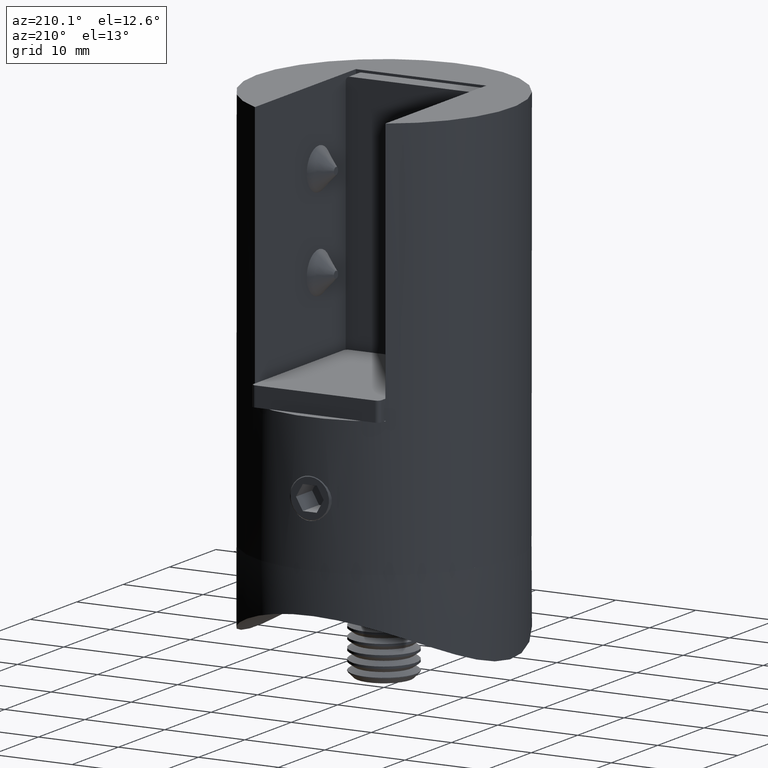
[diagram: clean part render]
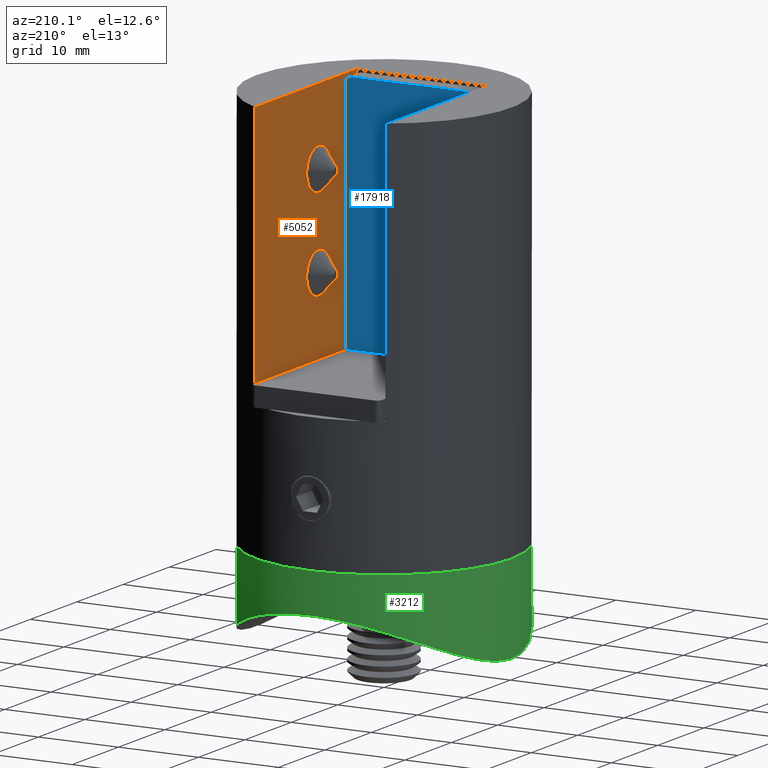
[diagram: same view with three faces highlighted in distinct colors, each labeled with its STEP entity id]
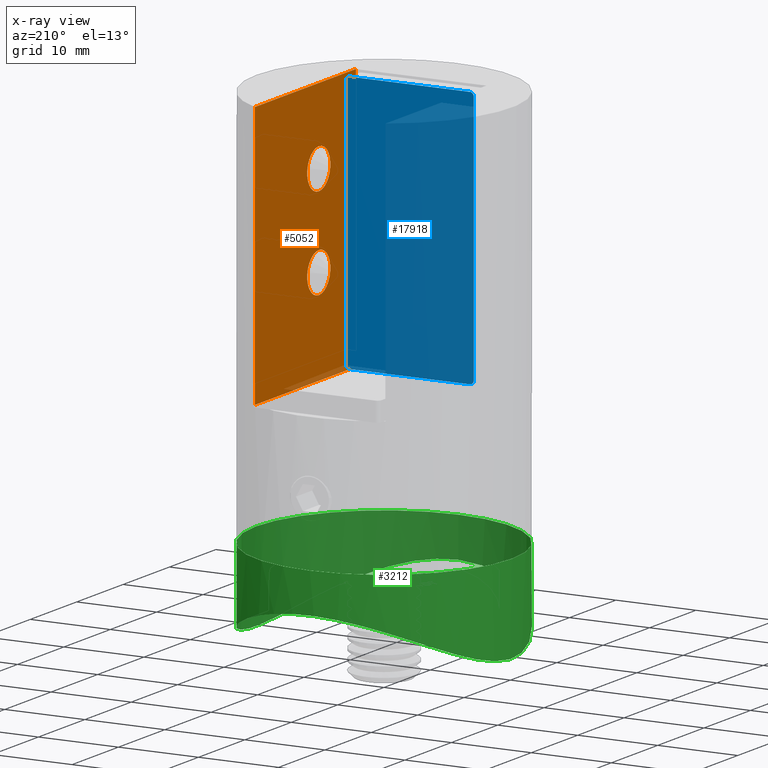
[diagram: x-ray of the same camera — body ghosted, the three highlighted faces saturated]
A machine part, auxiliary view with three faces highlighted in distinct colors.
The next image is the same camera in x-ray (body ghosted, the three faces saturated) — at least one of them is partly hidden behind the body in this view.
Their STEP definitions:

[orange] entity #5052 — the highlighted planar face has unit normal (1, 0, -0).
#827 = VERTEX_POINT ( 'NONE', #19871 ) ;
#1315 = VERTEX_POINT ( 'NONE', #14905 ) ;
#1495 = PLANE ( 'NONE',  #8730 ) ;
#1541 = DIRECTION ( 'NONE',  ( -0.000000000000000000, 1.000000000000000000, -0.000000000000000000 ) ) ;
#2901 = EDGE_LOOP ( 'NONE', ( #15234, #3055, #20186, #18677 ) ) ;
#3001 = VECTOR ( 'NONE', #1541, 1000.000000000000000 ) ;
#3055 = ORIENTED_EDGE ( 'NONE', *, *, #3916, .F. ) ;
#3275 = LINE ( 'NONE', #9643, #19771 ) ;
#3764 = EDGE_CURVE ( 'NONE', #7651, #19313, #12616, .T. ) ;
#3916 = EDGE_CURVE ( 'NONE', #12935, #19313, #13117, .T. ) ;
#4393 = DIRECTION ( 'NONE',  ( -3.304235192336775512E-16, 0.000000000000000000, -1.000000000000000000 ) ) ;
#4665 = DIRECTION ( 'NONE',  ( 1.000000000000000000, 0.000000000000000000, -3.304235192336775512E-16 ) ) ;
#5052 = ADVANCED_FACE ( 'NONE', ( #18185, #7837, #7603 ), #1495, .F. ) ;
#5321 = EDGE_LOOP ( 'NONE', ( #19770 ) ) ;
#5907 = CARTESIAN_POINT ( 'NONE',  ( 8.150000000000002132, -7.703719777548943412E-31, -21.00000000000001421 ) ) ;
#6903 = EDGE_CURVE ( 'NONE', #1315, #1315, #13743, .T. ) ;
#7403 = CARTESIAN_POINT ( 'NONE',  ( 8.150000000000000355, 13.76871453694934111, -33.00000000000000000 ) ) ;
#7492 = DIRECTION ( 'NONE',  ( -1.000000000000000000, -0.000000000000000000, 3.304235192336775512E-16 ) ) ;
#7603 = FACE_OUTER_BOUND ( 'NONE', #2901, .T. ) ;
#7651 = VERTEX_POINT ( 'NONE', #19502 ) ;
#7837 = FACE_BOUND ( 'NONE', #5321, .T. ) ;
#8730 = AXIS2_PLACEMENT_3D ( 'NONE', #14111, #4665, #4393 ) ;
#8752 = EDGE_LOOP ( 'NONE', ( #15947 ) ) ;
#9512 = DIRECTION ( 'NONE',  ( -3.304235192336775512E-16, -0.000000000000000000, -1.000000000000000000 ) ) ;
#9643 = CARTESIAN_POINT ( 'NONE',  ( 8.150000000000000355, -8.000000000000000000, -33.00000000000000000 ) ) ;
#10342 = CIRCLE ( 'NONE', #18752, 2.499999999999988454 ) ;
#10685 = EDGE_CURVE ( 'NONE', #14396, #7651, #18093, .T. ) ;
#11473 = DIRECTION ( 'NONE',  ( -1.000000000000000000, -0.000000000000000000, 3.304235192336775512E-16 ) ) ;
#11922 = CARTESIAN_POINT ( 'NONE',  ( 8.150000000000000355, -8.000000000000000000, -33.00000000000000000 ) ) ;
#12463 = CARTESIAN_POINT ( 'NONE',  ( 8.150000000000011013, -8.000000000000000000, -1.387778780781445676E-14 ) ) ;
#12616 = LINE ( 'NONE', #20099, #13369 ) ;
#12920 = VECTOR ( 'NONE', #17824, 1000.000000000000000 ) ;
#12935 = VERTEX_POINT ( 'NONE', #11922 ) ;
#13117 = LINE ( 'NONE', #17097, #3001 ) ;
#13369 = VECTOR ( 'NONE', #17030, 1000.000000000000000 ) ;
#13743 = CIRCLE ( 'NONE', #14309, 2.499999999999988454 ) ;
#14111 = CARTESIAN_POINT ( 'NONE',  ( 8.150000000000000355, -8.000000000000000000, -33.00000000000000000 ) ) ;
#14309 = AXIS2_PLACEMENT_3D ( 'NONE', #17531, #11473, #14462 ) ;
#14396 = VERTEX_POINT ( 'NONE', #12463 ) ;
#14462 = DIRECTION ( 'NONE',  ( 0.000000000000000000, 0.000000000000000000, 1.000000000000000000 ) ) ;
#14752 = CARTESIAN_POINT ( 'NONE',  ( 8.150000000000011013, 0.000000000000000000, 0.000000000000000000 ) ) ;
#14905 = CARTESIAN_POINT ( 'NONE',  ( 8.150000000000005684, 0.000000000000000000, -7.000000000000024869 ) ) ;
#14980 = EDGE_CURVE ( 'NONE', #827, #827, #10342, .T. ) ;
#15234 = ORIENTED_EDGE ( 'NONE', *, *, #3764, .T. ) ;
#15947 = ORIENTED_EDGE ( 'NONE', *, *, #6903, .F. ) ;
#17030 = DIRECTION ( 'NONE',  ( -0.000000000000000000, -0.000000000000000000, -1.000000000000000000 ) ) ;
#17097 = CARTESIAN_POINT ( 'NONE',  ( 8.150000000000000355, -8.000000000000000000, -33.00000000000000000 ) ) ;
#17531 = CARTESIAN_POINT ( 'NONE',  ( 8.150000000000005684, 0.000000000000000000, -9.500000000000014211 ) ) ;
#17824 = DIRECTION ( 'NONE',  ( -0.000000000000000000, 1.000000000000000000, 0.000000000000000000 ) ) ;
#18093 = LINE ( 'NONE', #14752, #12920 ) ;
#18185 = FACE_BOUND ( 'NONE', #8752, .T. ) ;
#18677 = ORIENTED_EDGE ( 'NONE', *, *, #10685, .T. ) ;
#18752 = AXIS2_PLACEMENT_3D ( 'NONE', #5907, #7492, #20054 ) ;
#19313 = VERTEX_POINT ( 'NONE', #7403 ) ;
#19502 = CARTESIAN_POINT ( 'NONE',  ( 8.150000000000011013, 13.76871453694933045, 0.000000000000000000 ) ) ;
#19770 = ORIENTED_EDGE ( 'NONE', *, *, #14980, .F. ) ;
#19771 = VECTOR ( 'NONE', #9512, 1000.000000000000000 ) ;
#19871 = CARTESIAN_POINT ( 'NONE',  ( 8.150000000000002132, -7.703719777548943412E-31, -18.50000000000002842 ) ) ;
#19927 = EDGE_CURVE ( 'NONE', #14396, #12935, #3275, .T. ) ;
#20054 = DIRECTION ( 'NONE',  ( 0.000000000000000000, 0.000000000000000000, 1.000000000000000000 ) ) ;
#20099 = CARTESIAN_POINT ( 'NONE',  ( 8.149999999999995026, 13.76871453694933933, -50.00000000000000000 ) ) ;
#20186 = ORIENTED_EDGE ( 'NONE', *, *, #19927, .F. ) ;

[blue] entity #17918 — the highlighted planar face has unit normal (0, -1, -0).
#59 = DIRECTION ( 'NONE',  ( 1.000000000000000000, 0.000000000000000000, 0.000000000000000000 ) ) ;
#273 = DIRECTION ( 'NONE',  ( 0.000000000000000000, 0.000000000000000000, 1.000000000000000000 ) ) ;
#308 = ORIENTED_EDGE ( 'NONE', *, *, #18790, .T. ) ;
#888 = EDGE_CURVE ( 'NONE', #18146, #14594, #11934, .T. ) ;
#1331 = CARTESIAN_POINT ( 'NONE',  ( -15.69999999999999929, 2.450000000000000178, 7.500000000000000000 ) ) ;
#1605 = FACE_OUTER_BOUND ( 'NONE', #15563, .T. ) ;
#1640 = DIRECTION ( 'NONE',  ( 0.000000000000000000, 0.000000000000000000, -1.000000000000000000 ) ) ;
#1656 = CARTESIAN_POINT ( 'NONE',  ( -16.19999999999999929, 2.450000000000000178, 7.499999999999996447 ) ) ;
#1680 = VECTOR ( 'NONE', #17574, 1000.000000000000000 ) ;
#1814 = ORIENTED_EDGE ( 'NONE', *, *, #12353, .F. ) ;
#2299 = EDGE_CURVE ( 'NONE', #2986, #12540, #4771, .T. ) ;
#2668 = LINE ( 'NONE', #3409, #1680 ) ;
#2958 = EDGE_CURVE ( 'NONE', #8978, #7836, #6973, .T. ) ;
#2986 = VERTEX_POINT ( 'NONE', #16814 ) ;
#3409 = CARTESIAN_POINT ( 'NONE',  ( -15.69999999999999574, 2.450000000000000178, 8.000000000000000000 ) ) ;
#4012 = AXIS2_PLACEMENT_3D ( 'NONE', #1331, #4497, #17018 ) ;
#4404 = ORIENTED_EDGE ( 'NONE', *, *, #2958, .T. ) ;
#4497 = DIRECTION ( 'NONE',  ( 0.000000000000000000, 1.000000000000000000, 0.000000000000000000 ) ) ;
#4771 = CIRCLE ( 'NONE', #19125, 0.5000000000000004441 ) ;
#4968 = AXIS2_PLACEMENT_3D ( 'NONE', #17168, #10687, #6031 ) ;
#5008 = DIRECTION ( 'NONE',  ( -0.000000000000000000, -1.000000000000000000, 0.000000000000000000 ) ) ;
#5020 = CARTESIAN_POINT ( 'NONE',  ( 15.69999999999999929, 2.450000000000000178, -7.500000000000000000 ) ) ;
#5033 = CARTESIAN_POINT ( 'NONE',  ( 16.19999999999999929, 2.450000000000000178, -7.499999999999996447 ) ) ;
#5070 = VERTEX_POINT ( 'NONE', #16912 ) ;
#5920 = EDGE_CURVE ( 'NONE', #12540, #5070, #10029, .T. ) ;
#5976 = EDGE_CURVE ( 'NONE', #7836, #18146, #2668, .T. ) ;
#6031 = DIRECTION ( 'NONE',  ( 0.000000000000000000, -0.000000000000000000, -1.000000000000000000 ) ) ;
#6033 = CIRCLE ( 'NONE', #6223, 0.5000000000000004441 ) ;
#6223 = AXIS2_PLACEMENT_3D ( 'NONE', #5020, #9596, #273 ) ;
#6537 = DIRECTION ( 'NONE',  ( 0.000000000000000000, 0.000000000000000000, -1.000000000000000000 ) ) ;
#6973 = CIRCLE ( 'NONE', #4012, 0.5000000000000004441 ) ;
#7018 = VECTOR ( 'NONE', #9399, 1000.000000000000000 ) ;
#7101 = VECTOR ( 'NONE', #59, 1000.000000000000000 ) ;
#7276 = CARTESIAN_POINT ( 'NONE',  ( -15.69999999999999574, 2.450000000000000178, -8.000000000000000000 ) ) ;
#7836 = VERTEX_POINT ( 'NONE', #10736 ) ;
#8503 = DIRECTION ( 'NONE',  ( 0.000000000000000000, 1.000000000000000000, 0.000000000000000000 ) ) ;
#8671 = VECTOR ( 'NONE', #6537, 1000.000000000000000 ) ;
#8978 = VERTEX_POINT ( 'NONE', #9833 ) ;
#9399 = DIRECTION ( 'NONE',  ( 0.000000000000000000, 0.000000000000000000, -1.000000000000000000 ) ) ;
#9596 = DIRECTION ( 'NONE',  ( 0.000000000000000000, 1.000000000000000000, 0.000000000000000000 ) ) ;
#9833 = CARTESIAN_POINT ( 'NONE',  ( -16.19999999999999929, 2.450000000000000178, 7.499999999999996447 ) ) ;
#10029 = LINE ( 'NONE', #18403, #7101 ) ;
#10188 = ORIENTED_EDGE ( 'NONE', *, *, #5976, .T. ) ;
#10687 = DIRECTION ( 'NONE',  ( 0.000000000000000000, -1.000000000000000000, 0.000000000000000000 ) ) ;
#10736 = CARTESIAN_POINT ( 'NONE',  ( -15.69999999999999574, 2.450000000000000178, 8.000000000000000000 ) ) ;
#10880 = LINE ( 'NONE', #1656, #8671 ) ;
#11180 = CARTESIAN_POINT ( 'NONE',  ( -15.69999999999999929, 2.450000000000000178, -7.500000000000000000 ) ) ;
#11434 = CARTESIAN_POINT ( 'NONE',  ( 15.69999999999999574, 2.450000000000000178, 8.000000000000000000 ) ) ;
#11477 = AXIS2_PLACEMENT_3D ( 'NONE', #19702, #8503, #11685 ) ;
#11685 = DIRECTION ( 'NONE',  ( 0.000000000000000000, 0.000000000000000000, 1.000000000000000000 ) ) ;
#11934 = CIRCLE ( 'NONE', #11477, 0.5000000000000004441 ) ;
#12353 = EDGE_CURVE ( 'NONE', #8978, #2986, #10880, .T. ) ;
#12526 = CARTESIAN_POINT ( 'NONE',  ( 16.19999999999999929, 2.450000000000000178, 7.499999999999996447 ) ) ;
#12527 = ORIENTED_EDGE ( 'NONE', *, *, #888, .T. ) ;
#12540 = VERTEX_POINT ( 'NONE', #7276 ) ;
#14407 = CARTESIAN_POINT ( 'NONE',  ( 16.19999999999999929, 2.450000000000000178, 7.499999999999996447 ) ) ;
#14594 = VERTEX_POINT ( 'NONE', #14407 ) ;
#14599 = VERTEX_POINT ( 'NONE', #5033 ) ;
#15563 = EDGE_LOOP ( 'NONE', ( #16376, #1814, #4404, #10188, #12527, #19436, #308, #18912 ) ) ;
#15641 = LINE ( 'NONE', #12526, #7018 ) ;
#16376 = ORIENTED_EDGE ( 'NONE', *, *, #2299, .F. ) ;
#16814 = CARTESIAN_POINT ( 'NONE',  ( -16.19999999999999929, 2.450000000000000178, -7.499999999999996447 ) ) ;
#16912 = CARTESIAN_POINT ( 'NONE',  ( 15.69999999999999574, 2.450000000000000178, -8.000000000000000000 ) ) ;
#17018 = DIRECTION ( 'NONE',  ( 0.000000000000000000, 0.000000000000000000, 1.000000000000000000 ) ) ;
#17036 = PLANE ( 'NONE',  #4968 ) ;
#17168 = CARTESIAN_POINT ( 'NONE',  ( -15.69999999999999929, 2.450000000000000178, -7.500000000000000000 ) ) ;
#17574 = DIRECTION ( 'NONE',  ( 1.000000000000000000, 0.000000000000000000, 0.000000000000000000 ) ) ;
#17918 = ADVANCED_FACE ( 'NONE', ( #1605 ), #17036, .F. ) ;
#18146 = VERTEX_POINT ( 'NONE', #11434 ) ;
#18403 = CARTESIAN_POINT ( 'NONE',  ( -15.69999999999999574, 2.450000000000000178, -8.000000000000000000 ) ) ;
#18617 = EDGE_CURVE ( 'NONE', #14594, #14599, #15641, .T. ) ;
#18790 = EDGE_CURVE ( 'NONE', #14599, #5070, #6033, .T. ) ;
#18912 = ORIENTED_EDGE ( 'NONE', *, *, #5920, .F. ) ;
#19125 = AXIS2_PLACEMENT_3D ( 'NONE', #11180, #5008, #1640 ) ;
#19436 = ORIENTED_EDGE ( 'NONE', *, *, #18617, .T. ) ;
#19702 = CARTESIAN_POINT ( 'NONE',  ( 15.69999999999999929, 2.450000000000000178, 7.500000000000000000 ) ) ;

[green] entity #3212 — the highlighted cylindrical surface (bore or boss wall) has radius 16 mm, axis along (0, -0, -1).
#168 = CARTESIAN_POINT ( 'NONE',  ( 4.878909776184769953E-16, 3.465933333802039860E-15, -16.00000000000000711 ) ) ;
#375 = CARTESIAN_POINT ( 'NONE',  ( -8.551384528557964160, -1.560042046064436416, 13.53284123907771175 ) ) ;
#444 = EDGE_LOOP ( 'NONE', ( #12093 ) ) ;
#447 = CARTESIAN_POINT ( 'NONE',  ( -1.042858073736825597, -0.01647405515341673898, 15.97517427357765563 ) ) ;
#516 = CARTESIAN_POINT ( 'NONE',  ( -15.42321579544490184, -5.566283524729522370, 4.265649853437405881 ) ) ;
#585 = CARTESIAN_POINT ( 'NONE',  ( 5.320418285404791447, -0.5719942947260659993, 15.12623773592640930 ) ) ;
#662 = CARTESIAN_POINT ( 'NONE',  ( 14.31986462821768313, -4.696873124689878054, -7.211724514559750610 ) ) ;
#921 = CARTESIAN_POINT ( 'NONE',  ( -9.411353361399397599, -1.904576057870598804, -12.94954299253910968 ) ) ;
#984 = CARTESIAN_POINT ( 'NONE',  ( -0.5467149535870703403, 3.476223215531642281E-15, -16.00000000000000711 ) ) ;
#1007 = DIRECTION ( 'NONE',  ( -0.000000000000000000, -1.000000000000000000, -0.000000000000000000 ) ) ;
#1472 = ORIENTED_EDGE ( 'NONE', *, *, #3578, .T. ) ;
#1742 = CARTESIAN_POINT ( 'NONE',  ( 5.275747725206339389, -0.5775232300563346577, -15.11469623726103606 ) ) ;
#1800 = VERTEX_POINT ( 'NONE', #15099 ) ;
#1953 = CARTESIAN_POINT ( 'NONE',  ( 4.310827683376341923, -0.3640347307496384910, 15.44594141629692352 ) ) ;
#2022 = CARTESIAN_POINT ( 'NONE',  ( -12.05392479121809046, -3.207642341430238186, 10.57031934000033147 ) ) ;
#2095 = CARTESIAN_POINT ( 'NONE',  ( -2.662944644146644446, -0.1413683881137999532, 15.78602135888619529 ) ) ;
#2168 = CARTESIAN_POINT ( 'NONE',  ( 15.89507951209992420, -5.966280007977300848, 2.121861214580270438 ) ) ;
#2227 = CARTESIAN_POINT ( 'NONE',  ( 0.000000000000000000, 5.000000000000000000, -16.00000000000000000 ) ) ;
#2234 = CARTESIAN_POINT ( 'NONE',  ( 15.99889945513611700, -6.059734157207304683, -0.5739181088469769154 ) ) ;
#2275 = AXIS2_PLACEMENT_3D ( 'NONE', #11817, #1007, #8763 ) ;
#2296 = CARTESIAN_POINT ( 'NONE',  ( -7.232166046226576661, -1.086845825324251003, -14.31039729867868182 ) ) ;
#2364 = CARTESIAN_POINT ( 'NONE',  ( -3.485726828505891106, -0.2514084154458020026, -15.61799768039313996 ) ) ;
#2425 = CARTESIAN_POINT ( 'NONE',  ( -14.33314076264084136, -4.706689628118392754, -7.185494220534367926 ) ) ;
#2489 = CARTESIAN_POINT ( 'NONE',  ( -4.268279367806601776, -0.3787143447972567412, -15.42252057435309176 ) ) ;
#3188 = CARTESIAN_POINT ( 'NONE',  ( 5.772343269960320988, -0.6946781532575976303, -14.93167379752965473 ) ) ;
#3212 = ADVANCED_FACE ( 'NONE', ( #19745, #20235 ), #13386, .T. ) ;
#3464 = CARTESIAN_POINT ( 'NONE',  ( 2.162802222802237218, -0.07385003039676880932, -15.88913970827019284 ) ) ;
#3496 = CIRCLE ( 'NONE', #2275, 16.00000000000000000 ) ;
#3537 = CARTESIAN_POINT ( 'NONE',  ( -8.110807478866485454, -1.397652382978113561, 13.80164670675395300 ) ) ;
#3578 = EDGE_CURVE ( 'NONE', #17319, #17319, #3496, .T. ) ;
#3615 = CARTESIAN_POINT ( 'NONE',  ( 15.42559031887747523, -5.567332529912010664, -4.281581221595087250 ) ) ;
#3686 = CARTESIAN_POINT ( 'NONE',  ( 15.77490872757177520, -5.863532677428071160, -2.726765751964202789 ) ) ;
#3759 = CARTESIAN_POINT ( 'NONE',  ( 13.57136654030459866, -4.171130408817958823, 8.489749767725491836 ) ) ;
#3833 = CARTESIAN_POINT ( 'NONE',  ( 12.70400355167247319, -3.608075241889363127, 9.739886530507446238 ) ) ;
#3896 = CARTESIAN_POINT ( 'NONE',  ( -5.790292232700016584, -0.6991425015800778464, -14.92465879011944452 ) ) ;
#3970 = CARTESIAN_POINT ( 'NONE',  ( -14.93763095668425933, -5.172266547697089045, -5.756278679030428336 ) ) ;
#4786 = CARTESIAN_POINT ( 'NONE',  ( 9.842730464393167011, -2.077531809922397610, -12.65667063551272697 ) ) ;
#5066 = EDGE_LOOP ( 'NONE', ( #1472 ) ) ;
#5123 = CARTESIAN_POINT ( 'NONE',  ( 15.44214941605699387, -5.581131056128653789, 4.221083223141256724 ) ) ;
#5195 = CARTESIAN_POINT ( 'NONE',  ( -13.81742950120149516, -4.341107592674501525, 8.083516411768695065 ) ) ;
#5264 = CARTESIAN_POINT ( 'NONE',  ( -15.88834132209191274, -5.960334649251885608, 2.171086772573057821 ) ) ;
#5330 = CARTESIAN_POINT ( 'NONE',  ( -5.258828131823481300, -0.5579214799764438126, 15.14813486559561007 ) ) ;
#5398 = CARTESIAN_POINT ( 'NONE',  ( 6.773507639207513975, -0.9639315492255671192, 14.50507062910953238 ) ) ;
#6429 = CARTESIAN_POINT ( 'NONE',  ( 4.251902136647176533, -0.3715117522175356291, -15.43401712533286130 ) ) ;
#6494 = CARTESIAN_POINT ( 'NONE',  ( 11.69353741336916208, -3.015975473543497376, -10.93237706803038733 ) ) ;
#6689 = CARTESIAN_POINT ( 'NONE',  ( -6.721650818704468122, -0.9487792169212915239, 14.52927135399406566 ) ) ;
#6759 = CARTESIAN_POINT ( 'NONE',  ( -14.53161606438342801, -4.859603105429813219, 6.715620687923966159 ) ) ;
#6827 = CARTESIAN_POINT ( 'NONE',  ( -16.00015859834054766, -6.060847867454414839, -0.2633096187692477441 ) ) ;
#6901 = CARTESIAN_POINT ( 'NONE',  ( 15.13104560772049645, -5.326760872273300862, 5.227712786830983838 ) ) ;
#6970 = CARTESIAN_POINT ( 'NONE',  ( 8.600228732240525531, -1.578661036202237966, 13.50173790755023617 ) ) ;
#7043 = CARTESIAN_POINT ( 'NONE',  ( -15.56725914140275968, -5.686447009818094145, -3.734377750765781823 ) ) ;
#7110 = CARTESIAN_POINT ( 'NONE',  ( -3.747472486822372773, -0.2910670728257301332, -15.55727481239877008 ) ) ;
#7993 = CARTESIAN_POINT ( 'NONE',  ( 1.093429907174150006, 3.445353570342834229E-15, -16.00000000000000711 ) ) ;
#8058 = CARTESIAN_POINT ( 'NONE',  ( 12.68024191844236270, -3.593356043621906082, -9.770904417435113842 ) ) ;
#8193 = CARTESIAN_POINT ( 'NONE',  ( 0.03513741029744595068, 0.01797691695324645997, 16.02709411151440477 ) ) ;
#8266 = CARTESIAN_POINT ( 'NONE',  ( -9.401984288177461124, -1.900616431894089908, 12.95633670457074338 ) ) ;
#8335 = CARTESIAN_POINT ( 'NONE',  ( -15.11478067928221591, -5.313678253764541282, 5.274540260561693117 ) ) ;
#8402 = CARTESIAN_POINT ( 'NONE',  ( 13.00573230629547439, -3.798387113308692609, 9.333207812262424241 ) ) ;
#8478 = CARTESIAN_POINT ( 'NONE',  ( 9.865639215707155074, -2.088296295899021882, 12.63774528741735281 ) ) ;
#8740 = CARTESIAN_POINT ( 'NONE',  ( -12.05805447839437150, -3.210101427612138458, -10.56539283169655796 ) ) ;
#8763 = DIRECTION ( 'NONE',  ( 0.000000000000000000, 0.000000000000000000, -1.000000000000000000 ) ) ;
#8801 = CARTESIAN_POINT ( 'NONE',  ( -15.96566512601532395, -6.030386982001304297, -1.082498266701986678 ) ) ;
#9621 = CARTESIAN_POINT ( 'NONE',  ( 13.83397895794804278, -4.343367616628929007, -8.102301808186028964 ) ) ;
#9760 = CARTESIAN_POINT ( 'NONE',  ( -4.245353141207407255, -0.3522660549656061457, 15.46402130076265458 ) ) ;
#9832 = CARTESIAN_POINT ( 'NONE',  ( 12.06181014241624005, -3.224534291990288626, 10.52472479242910453 ) ) ;
#9900 = CARTESIAN_POINT ( 'NONE',  ( 15.96965923795028885, -6.033763058675402746, -1.123321241678105542 ) ) ;
#9977 = CARTESIAN_POINT ( 'NONE',  ( 15.57501006091767515, -5.692989327537908650, 3.702434811011921845 ) ) ;
#10042 = CARTESIAN_POINT ( 'NONE',  ( 13.83527688763129326, -4.353578128611939491, 8.052981158596610456 ) ) ;
#10315 = CARTESIAN_POINT ( 'NONE',  ( -9.825312265958483948, -2.084764760639122194, -12.63824017794604337 ) ) ;
#10386 = CARTESIAN_POINT ( 'NONE',  ( -15.43338607518128391, -5.573817127507202152, -4.253440794167246075 ) ) ;
#11356 = CARTESIAN_POINT ( 'NONE',  ( 14.32465776655085676, -4.704759313945467092, 7.146297780622557383 ) ) ;
#11431 = CARTESIAN_POINT ( 'NONE',  ( -10.60246786348570325, -2.447457319275142318, 11.99379377658119594 ) ) ;
#11505 = CARTESIAN_POINT ( 'NONE',  ( 10.64387692798092822, -2.456888350107875318, 11.98939423343472832 ) ) ;
#11582 = CARTESIAN_POINT ( 'NONE',  ( 1.111836551517509042, -0.01958014879024436855, 15.97048600726808054 ) ) ;
#11654 = CARTESIAN_POINT ( 'NONE',  ( 15.55894929646023961, -5.679436140364019003, -3.768566520506819728 ) ) ;
#11713 = DIRECTION ( 'NONE',  ( 0.000000000000000000, 0.000000000000000000, -1.000000000000000000 ) ) ;
#11780 = DIRECTION ( 'NONE',  ( -0.000000000000000000, -1.000000000000000000, -0.000000000000000000 ) ) ;
#11791 = CARTESIAN_POINT ( 'NONE',  ( -13.84608556975143934, -4.351583562790193760, -8.083047669827825743 ) ) ;
#11817 = CARTESIAN_POINT ( 'NONE',  ( 0.000000000000000000, 5.000000000000000000, 0.000000000000000000 ) ) ;
#11858 = CARTESIAN_POINT ( 'NONE',  ( -15.11790863573347821, -5.316178976651885435, -5.265928485718427865 ) ) ;
#11987 = CARTESIAN_POINT ( 'NONE',  ( 4.878909776184769953E-16, 3.465933333802039860E-15, -16.00000000000000711 ) ) ;
#12093 = ORIENTED_EDGE ( 'NONE', *, *, #12904, .F. ) ;
#12904 = EDGE_CURVE ( 'NONE', #1800, #1800, #19366, .T. ) ;
#12960 = CARTESIAN_POINT ( 'NONE',  ( -7.197102279576335526, -1.092327983459493224, 14.29938350260618485 ) ) ;
#13022 = CARTESIAN_POINT ( 'NONE',  ( -12.69487955101366694, -3.594529789712058943, 9.791735161200366022 ) ) ;
#13098 = CARTESIAN_POINT ( 'NONE',  ( -15.55701186269881831, -5.678143422764770243, 3.748431145004460951 ) ) ;
#13175 = CARTESIAN_POINT ( 'NONE',  ( 15.10850992129838311, -5.308628103353483674, -5.292797218956190264 ) ) ;
#13247 = CARTESIAN_POINT ( 'NONE',  ( 16.00210777862565337, -6.062571913201299623, 1.053190261119271165 ) ) ;
#13384 = CARTESIAN_POINT ( 'NONE',  ( -15.86294566125995331, -5.940256868134336621, -2.158315827595793657 ) ) ;
#13386 = CYLINDRICAL_SURFACE ( 'NONE', #17040, 16.00000000000000000 ) ;
#13519 = CARTESIAN_POINT ( 'NONE',  ( -2.164908011609237182, -0.09120946649448465060, -15.86204911743261192 ) ) ;
#14225 = CARTESIAN_POINT ( 'NONE',  ( 7.219911771601451811, -1.082844712613556526, -14.31684989439542477 ) ) ;
#14352 = CARTESIAN_POINT ( 'NONE',  ( 8.130541118761520636, -1.391100727126341585, -13.81900704416462489 ) ) ;
#14491 = CARTESIAN_POINT ( 'NONE',  ( 3.733504146602000251, -0.2844914261029866664, -15.56748423215123900 ) ) ;
#14560 = CARTESIAN_POINT ( 'NONE',  ( 14.92631007649248787, -5.163351808448463309, -5.785511287820154891 ) ) ;
#14630 = CARTESIAN_POINT ( 'NONE',  ( -13.54947436980915754, -4.156239725927494355, 8.524743713000582090 ) ) ;
#14702 = CARTESIAN_POINT ( 'NONE',  ( -15.61797815048892524, -5.729731015479998746, 3.485802845067987210 ) ) ;
#14773 = CARTESIAN_POINT ( 'NONE',  ( 2.187881182888611331, -0.09326494938473635365, 15.85893296924522211 ) ) ;
#14836 = CARTESIAN_POINT ( 'NONE',  ( 14.95227849257499919, -5.183806075202462615, 5.718345991040335363 ) ) ;
#14906 = CARTESIAN_POINT ( 'NONE',  ( -2.696456683992734860, -0.1451357774197707673, -15.78029447197594415 ) ) ;
#15099 = CARTESIAN_POINT ( 'NONE',  ( 0.000000000000000000, 3.469446951953614189E-15, -16.00000000000000000 ) ) ;
#15102 = CARTESIAN_POINT ( 'NONE',  ( -10.61283868468660785, -2.452557239509840503, -11.98455384951243552 ) ) ;
#15165 = CARTESIAN_POINT ( 'NONE',  ( -8.135421732675848006, -1.393083533478103542, -13.81563811289492705 ) ) ;
#16142 = CARTESIAN_POINT ( 'NONE',  ( 8.161962422206624268, -1.415961414347748804, 13.77146542663681217 ) ) ;
#16211 = CARTESIAN_POINT ( 'NONE',  ( -14.30811814937147197, -4.692576443698980526, 7.179300148596226450 ) ) ;
#16277 = CARTESIAN_POINT ( 'NONE',  ( -15.99935160277725288, -6.060134079170732768, 1.100573636296142022 ) ) ;
#16346 = CARTESIAN_POINT ( 'NONE',  ( -10.98046573634212564, -2.636838702646092436, 11.64845743729608074 ) ) ;
#16417 = CARTESIAN_POINT ( 'NONE',  ( 2.728854609169550915, -0.1487693586672239332, 15.77477219835120970 ) ) ;
#16477 = CARTESIAN_POINT ( 'NONE',  ( -15.78160284456452800, -5.869317358116089345, -2.688149180651069337 ) ) ;
#16542 = CARTESIAN_POINT ( 'NONE',  ( -5.295071900945006682, -0.5818699998367168336, -15.10791962739741479 ) ) ;
#16739 = CARTESIAN_POINT ( 'NONE',  ( -12.70201650511801361, -3.598840525902970100, -9.783073236018308805 ) ) ;
#17040 = AXIS2_PLACEMENT_3D ( 'NONE', #19526, #11780, #11713 ) ;
#17319 = VERTEX_POINT ( 'NONE', #2227 ) ;
#17361 = CARTESIAN_POINT ( 'NONE',  ( 10.62306975625455330, -2.446863621940090994, -12.00721163866094088 ) ) ;
#17490 = CARTESIAN_POINT ( 'NONE',  ( 12.03352161052860225, -3.208211549429214049, -10.55715235723237377 ) ) ;
#17695 = CARTESIAN_POINT ( 'NONE',  ( 15.85751406783431783, -5.935519368400823836, -2.197979612437904962 ) ) ;
#17766 = CARTESIAN_POINT ( 'NONE',  ( -14.93494299043501883, -5.170148692227709120, 5.763237331498226368 ) ) ;
#17845 = CARTESIAN_POINT ( 'NONE',  ( -15.99326873482955236, -6.054746644116492327, -0.5381640911452839626 ) ) ;
#17913 = CARTESIAN_POINT ( 'NONE',  ( 7.249697420507559720, -1.108818860428955722, 14.27279853040922930 ) ) ;
#18044 = CARTESIAN_POINT ( 'NONE',  ( -1.090827547207879444, -0.01864438337379884306, -15.97189795124006473 ) ) ;
#19066 = CARTESIAN_POINT ( 'NONE',  ( 12.98469313883087395, -3.784955582294040610, -9.362388113636884057 ) ) ;
#19199 = CARTESIAN_POINT ( 'NONE',  ( -2.121512090381802995, -0.08729412674241480985, 15.86798451232856699 ) ) ;
#19269 = CARTESIAN_POINT ( 'NONE',  ( -9.812002301453734532, -2.078813026001570918, 12.64863726998572169 ) ) ;
#19339 = CARTESIAN_POINT ( 'NONE',  ( -15.35038739144273912, -5.506009415625038095, 4.520503226235753402 ) ) ;
#19366 = B_SPLINE_CURVE_WITH_KNOTS ( 'NONE', 3,
 ( #168, #7993, #3464, #14491, #6429, #1742, #3188, #14225, #14352, #4786, #17361, #6494, #17490, #8058, #19066, #9621, #662, #14560, #13175, #3615, #11654, #3686, #17695, #9900, #2234, #13247, #2168, #9977, #5123, #6901, #14836, #19407, #11356, #10042, #3759, #8402, #3833, #9832, #19469, #11505, #8478, #6970, #16142, #17913, #5398, #585, #1953, #16417, #14773, #11582, #8193, #447, #19199, #2095, #9760, #5330, #6689, #12960, #3537, #375, #8266, #19269, #11431, #16346, #2022, #13022, #14630, #5195, #16211, #6759, #17766, #8335, #19339, #516, #13098, #14702, #5264, #16277, #6827, #17845, #8801, #19540, #13384, #16477, #7043, #10386, #11858, #3970, #2425, #11791, #16739, #8740, #19812, #15102, #10315, #921, #15165, #2296, #3896, #16542, #19681, #2489, #7110, #2364, #14906, #13519, #18044, #984, #11987 ),
 .UNSPECIFIED., .T., .F.,
 ( 4, 2, 2, 2, 2, 2, 2, 2, 2, 2, 2, 2, 2, 2, 2, 2, 2, 2, 2, 2, 2, 2, 2, 2, 2, 1, 2, 2, 2, 2, 2, 2, 2, 2, 2, 2, 2, 2, 2, 2, 2, 2, 2, 2, 2, 2, 2, 2, 2, 2, 2, 2, 2, 2, 4 ),
 ( 0.000000000000000000, 0.003228062074980117893, 0.004842093112470175972, 0.006456124149960234052, 0.009684186224940350210, 0.01291224829992046463, 0.01452627933741052271, 0.01614031037490058079, 0.01936837244988069348, 0.02098240348737074809, 0.02259643452486080617, 0.02421046556235086078, 0.02582449659984091886, 0.02905255867482102808, 0.03066658971231108963, 0.03228062074980114771, 0.03389465178729120926, 0.03550868282478126386, 0.03712271386227132541, 0.03873674489976138696, 0.04196480697474149618, 0.04357883801223155773, 0.04519286904972161234, 0.04842093112470172156, 0.05003496216219178311, 0.05164899319968183772, 0.05326302423717189233, 0.05487705527466195388, 0.05810511734964207003, 0.05971914838713213852, 0.06133317942462219313, 0.06294721046211225468, 0.06456124149960230929, 0.06778930357458241851, 0.06940333461207248700, 0.07101736564956254161, 0.07263139668705261009, 0.07343841220579763740, 0.07424542772454266470, 0.07747348979952277392, 0.07828050531826780123, 0.07908752083701282853, 0.08070155187450288314, 0.08231558291199293775, 0.08392961394948299236, 0.08715767602446312934, 0.09038573809944323856, 0.09199976913693329317, 0.09361380017442334778, 0.09684186224940345700, 0.09845589328689352548, 0.09926290880563855279, 0.1000699243243835801, 0.1016839553618736347, 0.1032979863993636754 ),
 .UNSPECIFIED. ) ;
#19407 = CARTESIAN_POINT ( 'NONE',  ( 14.54965497398694829, -4.873208662993606666, 6.676649843349944824 ) ) ;
#19469 = CARTESIAN_POINT ( 'NONE',  ( 11.71979043406766152, -3.030478474650312393, 10.90439978711422953 ) ) ;
#19526 = CARTESIAN_POINT ( 'NONE',  ( 0.000000000000000000, 0.000000000000000000, 0.000000000000000000 ) ) ;
#19540 = CARTESIAN_POINT ( 'NONE',  ( -15.94499217889639553, -6.012165319143346842, -1.352799867263029254 ) ) ;
#19681 = CARTESIAN_POINT ( 'NONE',  ( -4.528215867626921742, -0.4268937406720419991, -15.34819261451298544 ) ) ;
#19745 = FACE_OUTER_BOUND ( 'NONE', #444, .T. ) ;
#19812 = CARTESIAN_POINT ( 'NONE',  ( -10.98755386895284758, -2.640477864831261456, -11.64172284715012751 ) ) ;
#20235 = FACE_OUTER_BOUND ( 'NONE', #5066, .T. ) ;